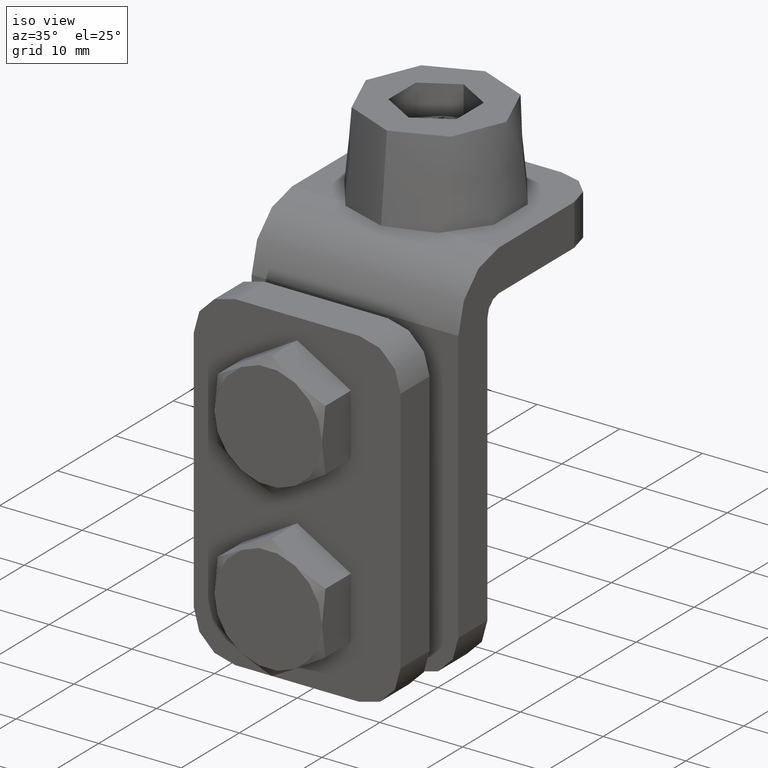
[diagram: clean part render]
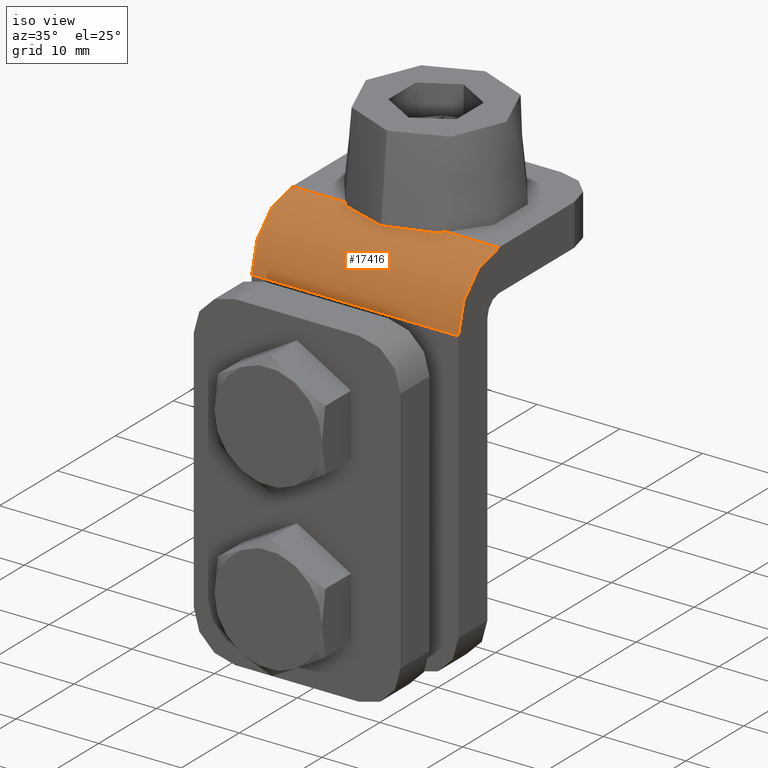
[diagram: same view with one face highlighted and labeled with its STEP entity id]
A machine part, iso view. The second image highlights one B-rep face of the part: STEP entity #17416.
In plain terms, the highlighted cylindrical surface (partial cylindrical patch) has radius 7 mm, axis along (-1, -0, -0).
Its self-contained STEP definition (entity closure, byte-faithful):
#97 = ORIENTED_EDGE ( 'NONE', *, *, #4050, .T. ) ;
#490 = DIRECTION ( 'NONE',  ( 0.000000000000000000, 0.000000000000000000, -1.000000000000000000 ) ) ;
#863 = ORIENTED_EDGE ( 'NONE', *, *, #16277, .F. ) ;
#1260 = VERTEX_POINT ( 'NONE', #15610 ) ;
#1284 = DIRECTION ( 'NONE',  ( 1.000000000000000000, 0.000000000000000000, 0.000000000000000000 ) ) ;
#1723 = FACE_OUTER_BOUND ( 'NONE', #12761, .T. ) ;
#2254 = VERTEX_POINT ( 'NONE', #12016 ) ;
#2539 = CIRCLE ( 'NONE', #16274, 7.000000000000002665 ) ;
#3562 = AXIS2_PLACEMENT_3D ( 'NONE', #5448, #5513, #8247 ) ;
#4013 = CARTESIAN_POINT ( 'NONE',  ( 12.50000000000000000, 6.999999999999999112, 45.00000000000000711 ) ) ;
#4050 = EDGE_CURVE ( 'NONE', #6711, #1260, #11930, .T. ) ;
#5268 = DIRECTION ( 'NONE',  ( -1.000000000000000000, -0.000000000000000000, -0.000000000000000000 ) ) ;
#5448 = CARTESIAN_POINT ( 'NONE',  ( 12.50000000000000000, 7.000000000000000000, 38.00000000000000000 ) ) ;
#5513 = DIRECTION ( 'NONE',  ( -1.000000000000000000, -0.000000000000000000, -0.000000000000000000 ) ) ;
#6074 = DIRECTION ( 'NONE',  ( 1.000000000000000000, 0.000000000000000000, 0.000000000000000000 ) ) ;
#6350 = EDGE_CURVE ( 'NONE', #8249, #2254, #2539, .T. ) ;
#6378 = CARTESIAN_POINT ( 'NONE',  ( 12.50000000000000000, -2.602085213965210642E-15, 38.00000000000000000 ) ) ;
#6711 = VERTEX_POINT ( 'NONE', #12378 ) ;
#6949 = CARTESIAN_POINT ( 'NONE',  ( 12.50000000000000000, 6.999999999999999112, 45.00000000000000711 ) ) ;
#8247 = DIRECTION ( 'NONE',  ( 0.000000000000000000, 0.000000000000000000, 1.000000000000000000 ) ) ;
#8249 = VERTEX_POINT ( 'NONE', #4013 ) ;
#9930 = VECTOR ( 'NONE', #13805, 1000.000000000000000 ) ;
#9993 = ORIENTED_EDGE ( 'NONE', *, *, #6350, .F. ) ;
#10016 = CARTESIAN_POINT ( 'NONE',  ( 12.50000000000000000, 7.000000000000000000, 38.00000000000000000 ) ) ;
#10629 = LINE ( 'NONE', #6949, #15941 ) ;
#11716 = CARTESIAN_POINT ( 'NONE',  ( -12.50000000000000000, 7.000000000000000000, 38.00000000000000000 ) ) ;
#11930 = CIRCLE ( 'NONE', #17534, 7.000000000000002665 ) ;
#12003 = ORIENTED_EDGE ( 'NONE', *, *, #14760, .T. ) ;
#12016 = CARTESIAN_POINT ( 'NONE',  ( 12.50000000000000000, -2.602085213965210642E-15, 38.00000000000000000 ) ) ;
#12378 = CARTESIAN_POINT ( 'NONE',  ( -12.50000000000000000, 6.999999999999999112, 45.00000000000000711 ) ) ;
#12761 = EDGE_LOOP ( 'NONE', ( #97, #863, #9993, #12003 ) ) ;
#12889 = DIRECTION ( 'NONE',  ( 0.000000000000000000, 0.000000000000000000, -1.000000000000000000 ) ) ;
#13720 = LINE ( 'NONE', #6378, #9930 ) ;
#13805 = DIRECTION ( 'NONE',  ( -1.000000000000000000, -0.000000000000000000, -0.000000000000000000 ) ) ;
#14760 = EDGE_CURVE ( 'NONE', #8249, #6711, #10629, .T. ) ;
#15610 = CARTESIAN_POINT ( 'NONE',  ( -12.50000000000000000, -2.602085213965210642E-15, 38.00000000000000000 ) ) ;
#15894 = CYLINDRICAL_SURFACE ( 'NONE', #3562, 6.999999999999999112 ) ;
#15941 = VECTOR ( 'NONE', #5268, 1000.000000000000000 ) ;
#16274 = AXIS2_PLACEMENT_3D ( 'NONE', #10016, #1284, #12889 ) ;
#16277 = EDGE_CURVE ( 'NONE', #2254, #1260, #13720, .T. ) ;
#17416 = ADVANCED_FACE ( 'NONE', ( #1723 ), #15894, .T. ) ;
#17534 = AXIS2_PLACEMENT_3D ( 'NONE', #11716, #6074, #490 ) ;